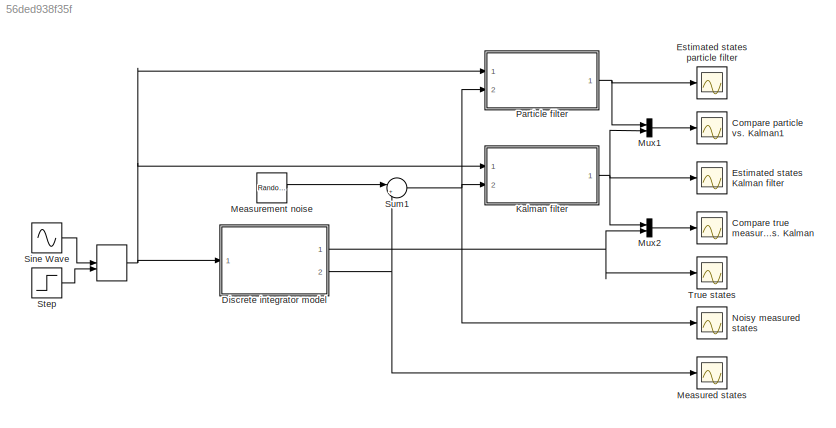
MODEL slx_56ded938f35f
KIND model
CONFIG AbsTol = auto
CONFIG FixedStep = auto
CONFIG MaxStep = auto
CONFIG MinStep = auto
CONFIG RelTol = 1e-3
CONFIG SampleTimeConstraint = Unconstrained
CONFIG Solver = VariableStepAuto
CONFIG SolverMode = Auto
CONFIG SolverName = VariableStepAuto
CONFIG StartTime = 0.0
CONFIG StopTime = 20
BLOCK [ManualSwitch]  
  CurrentSetting = 0
BLOCK [Scope] Compare particle vs. Kalman1
  Ports = [1]
  ScopeSpecificationString = Simulink.scopes.TimeScopeBlockCfg('CurrentConfiguration', extmgr.ConfigurationSet(extmgr.Configuration('Core','General UI',true),extmgr.Configuration('Core','Source UI',true),extmgr.Configuration('Sources','WiredSimulink',true,'DataLoggingVariableName','ScopeData3'),extmgr.Configuration('Visuals','Time Domain',true,'SerializedDisplays',{struct('MinYLimReal','-1.00000','MaxYLimReal','1.00000','YLab...<+1461ch>
BLOCK [Scope] Compare true measurements vs. Kalman
  Ports = [1]
  ScopeSpecificationString = Simulink.scopes.TimeScopeBlockCfg('CurrentConfiguration', extmgr.ConfigurationSet(extmgr.Configuration('Core','General UI',true),extmgr.Configuration('Core','Source UI',true),extmgr.Configuration('Sources','WiredSimulink',true,'DataLoggingVariableName','ScopeData1'),extmgr.Configuration('Visuals','Time Domain',true,'SerializedDisplays',{struct('MinYLimReal','-22.96717','MaxYLimReal','203.10746','Y...<+1422ch>
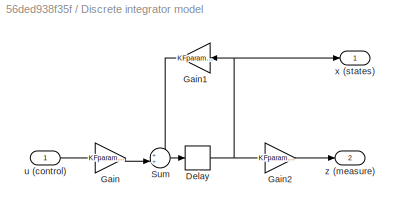
BLOCK [SubSystem] Discrete integrator model
  Ports = [1, 2]
  RequestExecContextInheritance = off
  Variant = off
BLOCK [Delay] Discrete integrator model/Delay
  DelayLength = 1
  InitialCondition = 0
  InputPortMap = u0
  Ports = [1, 1]
  SampleTime = Ts
BLOCK [Gain] Discrete integrator model/Gain
  Gain = KFparam.Bd
  Multiplication = Matrix(K*u)
  OutDataTypeStr = Inherit: Inherit via internal rule
  ParamDataTypeStr = Inherit: Inherit via internal rule
  SaturateOnIntegerOverflow = off
BLOCK [Gain] Discrete integrator model/Gain1
  Gain = KFparam.Ad
  Multiplication = Matrix(K*u)
  OutDataTypeStr = Inherit: Inherit via internal rule
  ParamDataTypeStr = Inherit: Inherit via internal rule
  SaturateOnIntegerOverflow = off
BLOCK [Gain] Discrete integrator model/Gain2
  Gain = KFparam.Cd
  Multiplication = Matrix(K*u)
  OutDataTypeStr = Inherit: Inherit via internal rule
  ParamDataTypeStr = Inherit: Inherit via internal rule
  SaturateOnIntegerOverflow = off
BLOCK [Sum] Discrete integrator model/Sum
  IconShape = round
  InputSameDT = off
  Inputs = ++|
  OutDataTypeStr = Inherit: Inherit via internal rule
  Ports = [2, 1]
  SaturateOnIntegerOverflow = off
BLOCK [Inport] Discrete integrator model/u (control)
  IconDisplay = Port number
BLOCK [Outport] Discrete integrator model/x (states)
  IconDisplay = Port number
BLOCK [Outport] Discrete integrator model/z (measure)
  IconDisplay = Port number
  Port = 2
BLOCK [Scope] Estimated states Kalman filter
  Ports = [1]
  ScopeSpecificationString = Simulink.scopes.TimeScopeBlockCfg('CurrentConfiguration', extmgr.ConfigurationSet(extmgr.Configuration('Core','General UI',true),extmgr.Configuration('Core','Source UI',true),extmgr.Configuration('Sources','WiredSimulink',true,'DataLoggingVariableName','ScopeData2'),extmgr.Configuration('Visuals','Time Domain',true,'SerializedDisplays',{struct('MinYLimReal','-2.74268','MaxYLimReal','21.37214','YLa...<+1396ch>
BLOCK [Scope] Estimated states particle filter
  Ports = [1]
  ScopeSpecificationString = Simulink.scopes.TimeScopeBlockCfg('CurrentConfiguration', extmgr.ConfigurationSet(extmgr.Configuration('Core','General UI',true),extmgr.Configuration('Core','Source UI',true),extmgr.Configuration('Sources','WiredSimulink',true,'DataLoggingVariableName','ScopeData1'),extmgr.Configuration('Visuals','Time Domain',true,'SerializedDisplays',{struct('MinYLimReal','-2.47364','MaxYLimReal','22.2628','YLab...<+1442ch>
BLOCK [ModelReference] Kalman filter
  ModelNameDialog = discrete_linear_kalman.slx
  ModelReferenceVersion = 1.93
  Ports = [2, 1]
  Variant = off
BLOCK [Scope] Measured states
  Ports = [1]
  ScopeSpecificationString = Simulink.scopes.TimeScopeBlockCfg('CurrentConfiguration', extmgr.ConfigurationSet(extmgr.Configuration('Core','General UI',true),extmgr.Configuration('Core','Source UI',true),extmgr.Configuration('Sources','WiredSimulink',true,'DataLoggingVariableName','ScopeData1'),extmgr.Configuration('Visuals','Time Domain',true,'SerializedDisplays',{struct('MinYLimReal','-2.38029','MaxYLimReal','21.42263','YLa...<+1397ch>
BLOCK [RandomNumber] Measurement noise
  SampleTime = Ts
  Variance = KFparam.std_R^2
BLOCK [Mux] Mux1
  DisplayOption = bar
  Inputs = 2
  Ports = [2, 1]
BLOCK [Mux] Mux2
  DisplayOption = bar
  Inputs = 2
  Ports = [2, 1]
BLOCK [Scope] Noisy measured states
  Ports = [1]
  ScopeSpecificationString = Simulink.scopes.TimeScopeBlockCfg('CurrentConfiguration', extmgr.ConfigurationSet(extmgr.Configuration('Core','General UI',true),extmgr.Configuration('Core','Source UI',true),extmgr.Configuration('Sources','WiredSimulink',true),extmgr.Configuration('Visuals','Time Domain',true,'SerializedDisplays',{struct('MinYLimReal','-2.4545','MaxYLimReal','21.4635','YLabelReal','','MinYLimMag','0.00000','MaxYL...<+1322ch>
BLOCK [ModelReference] Particle filter
  ModelNameDialog = discrete_particle_filter.slx
  ModelReferenceVersion = 1.15
  Ports = [2, 1]
  Variant = off
BLOCK [Sin] Sine Wave
  Ports = [0, 1]
  SampleTime = 0
BLOCK [Step] Step
  SampleTime = 0
BLOCK [Sum] Sum1
  IconShape = round
  InputSameDT = off
  Inputs = |++
  OutDataTypeStr = Inherit: Inherit via internal rule
  Ports = [2, 1]
  SaturateOnIntegerOverflow = off
BLOCK [Scope] True states
  Ports = [1]
  ScopeSpecificationString = Simulink.scopes.TimeScopeBlockCfg('CurrentConfiguration', extmgr.ConfigurationSet(extmgr.Configuration('Core','General UI',true),extmgr.Configuration('Core','Source UI',true),extmgr.Configuration('Sources','WiredSimulink',true,'DataLoggingVariableName','ScopeData3'),extmgr.Configuration('Visuals','Time Domain',true,'SerializedDisplays',{struct('MinYLimReal','-2.3817','MaxYLimReal','21.42278','YLab...<+1378ch>
NET  :1 -> Discrete integrator model:1, Kalman filter:1, Particle filter:1
NET Discrete integrator model/Delay:1 -> Discrete integrator model/Gain1:1, Discrete integrator model/Gain2:1, Discrete integrator model/x (states):1
LINE Discrete integrator model/Gain1:1 -> Discrete integrator model/Sum:1
LINE Discrete integrator model/Gain2:1 -> Discrete integrator model/z (measure):1
LINE Discrete integrator model/Gain:1 -> Discrete integrator model/Sum:2
LINE Discrete integrator model/Sum:1 -> Discrete integrator model/Delay:1
LINE Discrete integrator model/u (control):1 -> Discrete integrator model/Gain:1
NET Discrete integrator model:1 -> Mux2:2, True states:1
NET Discrete integrator model:2 -> Measured states:1, Sum1:2
NET Kalman filter:1 -> Estimated states Kalman filter:1, Mux1:2, Mux2:1
LINE Measurement noise:1 -> Sum1:1
LINE Mux1:1 -> Compare particle vs. Kalman1:1
LINE Mux2:1 -> Compare true measurements vs. Kalman:1
NET Particle filter:1 -> Estimated states particle filter:1, Mux1:1
LINE Sine Wave:1 ->  :1
LINE Step:1 ->  :2
NET Sum1:1 -> Kalman filter:2, Noisy measured states:1, Particle filter:2
note: NET lines group one-source signal fan-out (src -> all destinations, sorted); 1:1 wires keep LINE
